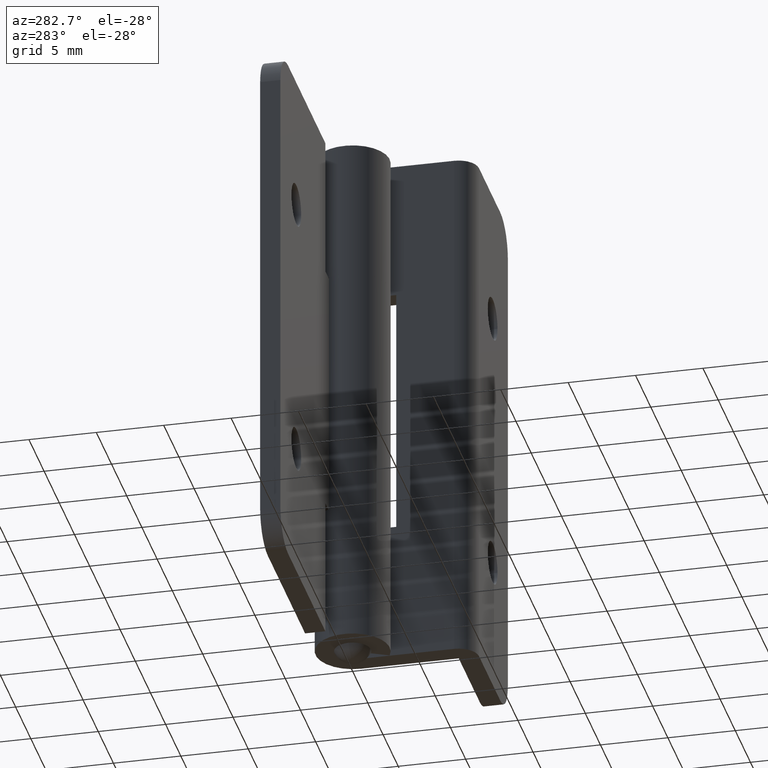
[diagram: clean part render]
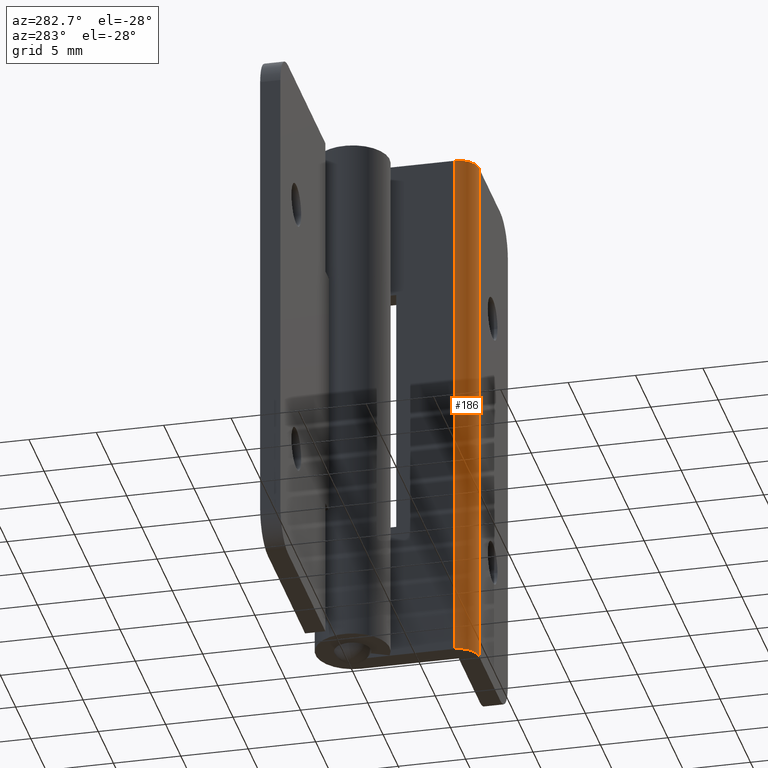
[diagram: same view with one face highlighted and labeled with its STEP entity id]
A machine part, auxiliary view. The second image highlights one B-rep face of the part: STEP entity #186.
In plain terms, the highlighted cylindrical surface (edge-blend (fillet) strip) has radius 1.5 mm, axis along (0, 0, -1).
Its self-contained STEP definition (entity closure, byte-faithful):
#186=ADVANCED_FACE('',(#579),#578,.T.);
#578=CYLINDRICAL_SURFACE('',#896,1.50000000000E+00);
#579=FACE_OUTER_BOUND('',#897,.T.);
#893=CARTESIAN_POINT('',(2.75000000000E+00,9.80000000000E+02,-7.25000400000E+00));
#894=DIRECTION('',(-0.00000000000E+00,1.00000000000E+00,0.00000000000E+00));
#895=DIRECTION('',(-0.00000000000E+00,-0.00000000000E+00,1.00000000000E+00));
#896=AXIS2_PLACEMENT_3D('',#893,#894,#895);
#897=EDGE_LOOP('',(#1151,#1152,#1153,#1154));
#1151=ORIENTED_EDGE('',*,*,#1302,.F.);
#1152=ORIENTED_EDGE('',*,*,#1317,.F.);
#1153=ORIENTED_EDGE('',*,*,#1293,.T.);
#1154=ORIENTED_EDGE('',*,*,#1312,.T.);
#1293=EDGE_CURVE('',#1933,#1926,#1934,.T.);
#1302=EDGE_CURVE('',#1988,#1960,#1995,.T.);
#1312=EDGE_CURVE('',#1926,#1960,#2062,.T.);
#1317=EDGE_CURVE('',#1933,#1988,#2096,.T.);
#1926=VERTEX_POINT('',#2521);
#1933=VERTEX_POINT('',#2525);
#1934=CIRCLE('',#2529,1.50000000000E+00);
#1960=VERTEX_POINT('',#2542);
#1988=VERTEX_POINT('',#2560);
#1995=CIRCLE('',#2567,1.50000000000E+00);
#2062=LINE('',#2605,#2606);
#2096=LINE('',#2628,#2629);
#2521=CARTESIAN_POINT('',(2.75000000000E+00,2.00000000000E+01,-8.75000400000E+00));
#2525=CARTESIAN_POINT('',(1.25000000000E+00,2.00000000000E+01,-7.25000400000E+00));
#2526=CARTESIAN_POINT('',(2.75000000000E+00,2.00000000000E+01,-7.25000400000E+00));
#2527=DIRECTION('',(0.00000000000E+00,-1.00000000000E+00,0.00000000000E+00));
#2528=DIRECTION('',(-0.00000000000E+00,-0.00000000000E+00,-1.00000000000E+00));
#2529=AXIS2_PLACEMENT_3D('',#2526,#2527,#2528);
#2542=CARTESIAN_POINT('',(2.75000000000E+00,-2.00000000000E+01,-8.75000400000E+00));
#2560=CARTESIAN_POINT('',(1.25000000000E+00,-2.00000000000E+01,-7.25000400000E+00));
#2564=CARTESIAN_POINT('',(2.75000000000E+00,-2.00000000000E+01,-7.25000400000E+00));
#2565=DIRECTION('',(0.00000000000E+00,-1.00000000000E+00,0.00000000000E+00));
#2566=DIRECTION('',(-0.00000000000E+00,-0.00000000000E+00,-1.00000000000E+00));
#2567=AXIS2_PLACEMENT_3D('',#2564,#2565,#2566);
#2605=CARTESIAN_POINT('',(2.75000000000E+00,2.00000000000E+01,-8.75000400000E+00));
#2606=VECTOR('',#2607,4.00000000000E+01);
#2607=DIRECTION('',(0.00000000000E+00,-1.00000000000E+00,0.00000000000E+00));
#2628=CARTESIAN_POINT('',(1.25000000000E+00,2.00000000000E+01,-7.25000400000E+00));
#2629=VECTOR('',#2630,4.00000000000E+01);
#2630=DIRECTION('',(0.00000000000E+00,-1.00000000000E+00,0.00000000000E+00));